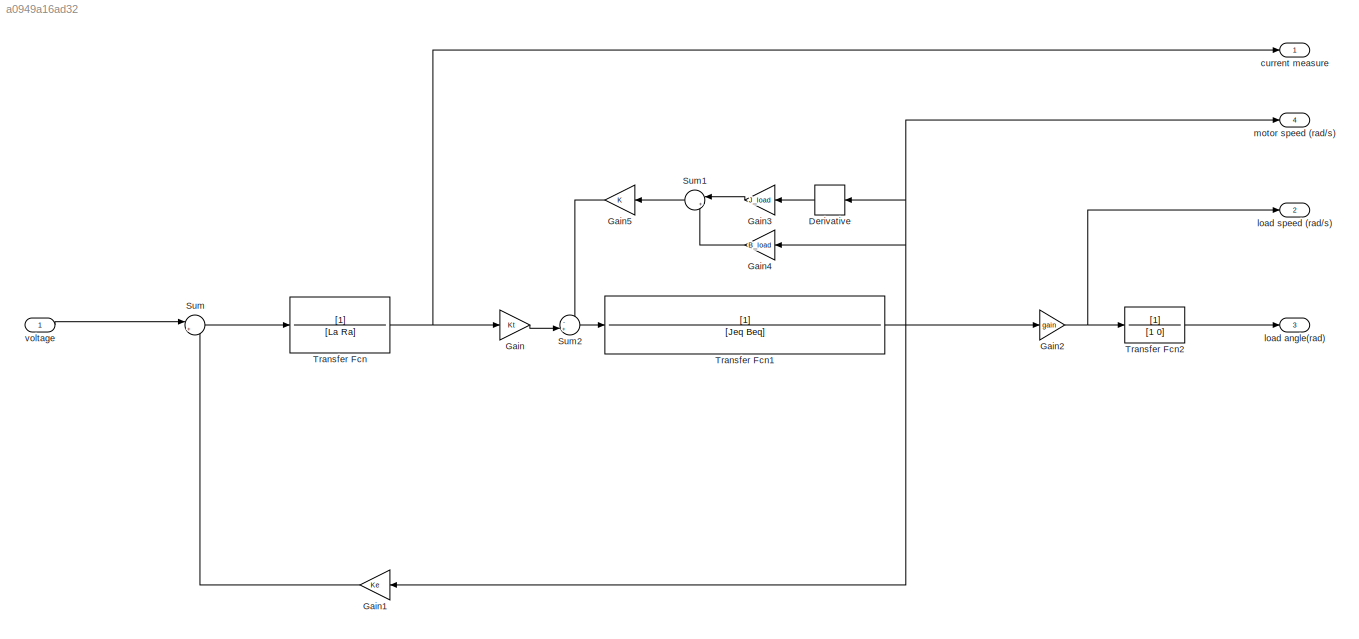
MODEL slx_a0949a16ad32
KIND model
CONFIG AbsTol = auto
CONFIG EnableMultiTasking = off
CONFIG FixedStep = auto
CONFIG MaxStep = auto
CONFIG MinStep = auto
CONFIG RelTol = 1e-3
CONFIG SampleTimeConstraint = Unconstrained
CONFIG SolverName = VariableStepAuto
CONFIG StartTime = 0.0
CONFIG StopTime = 0.05
BLOCK [Derivative] Derivative
  NameLocation = top
BLOCK [Gain] Gain
  Gain = Kt
BLOCK [Gain] Gain1
  Gain = Ke
  NameLocation = top
BLOCK [Gain] Gain2
  Gain = gain
BLOCK [Gain] Gain3
  Gain = J_load
  NameLocation = top
BLOCK [Gain] Gain4
  Gain = B_load
  NameLocation = top
BLOCK [Gain] Gain5
  NameLocation = top
BLOCK [Sum] Sum
  Inputs = |+-
BLOCK [Sum] Sum1
  Inputs = |++
  NameLocation = top
BLOCK [Sum] Sum2
  Inputs = -+|
BLOCK [TransferFcn] Transfer Fcn
  Denominator = [La Ra]
BLOCK [TransferFcn] Transfer Fcn1
  Denominator = [Jeq Beq]
BLOCK [TransferFcn] Transfer Fcn2
  Denominator = [1 0]
BLOCK [Outport] current measure
BLOCK [Outport] load angle(rad)
  Port = 3
BLOCK [Outport] load speed (rad//s)
  Port = 2
BLOCK [Outport] motor speed (rad//s)
  Port = 4
BLOCK [Inport] voltage
LINE Derivative:1 -> Gain3:1
LINE Gain1:1 -> Sum:2
NET Gain2:1 -> Transfer Fcn2:1, load speed (rad//s):1
LINE Gain3:1 -> Sum1:1
LINE Gain4:1 -> Sum1:2
LINE Gain5:1 -> Sum2:1
LINE Gain:1 -> Sum2:2
LINE Sum1:1 -> Gain5:1
LINE Sum2:1 -> Transfer Fcn1:1
LINE Sum:1 -> Transfer Fcn:1
NET Transfer Fcn1:1 -> Derivative:1, Gain1:1, Gain2:1, Gain4:1, motor speed (rad//s):1
LINE Transfer Fcn2:1 -> load angle(rad):1
NET Transfer Fcn:1 -> Gain:1, current measure:1
LINE voltage:1 -> Sum:1
note: NET lines group one-source signal fan-out (src -> all destinations, sorted); 1:1 wires keep LINE
